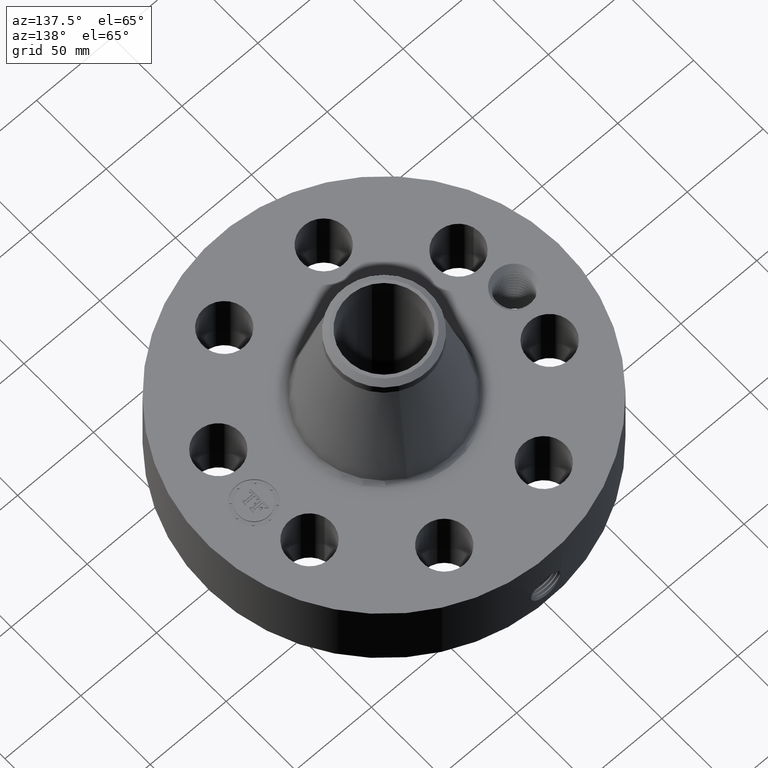
[diagram: clean part render]
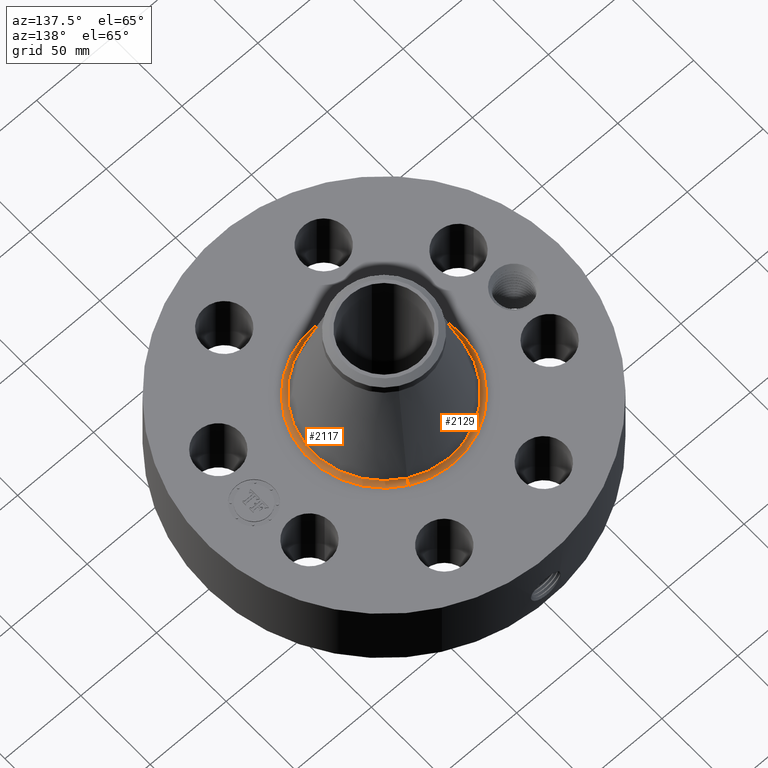
[diagram: same view with one multi-face feature highlighted, each face labeled with its STEP entity id]
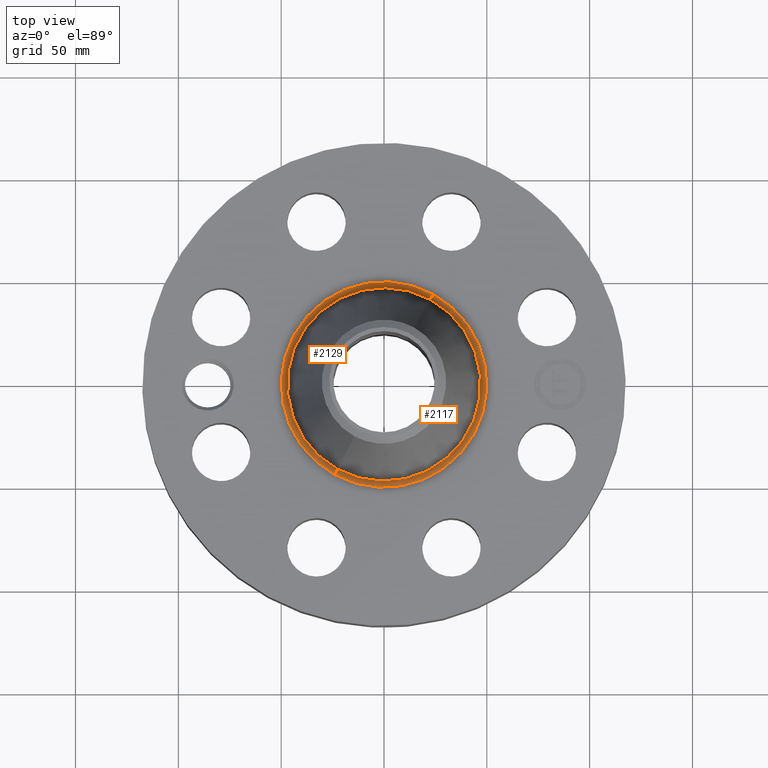
[diagram: same view with one multi-face feature highlighted, each face labeled with its STEP entity id]
A machine part, auxiliary view. The highlighted faces form ONE feature: a constant-radius fillet chain: 2 tangent blend faces with common blend radius 3.048 mm. The faces share edges in the B-rep.
A second angle (top view) of the same feature is appended — it is thin or edge-on in the first view.
Their STEP definitions:
[1] entity #2117 (Torus):
#596=AXIS2_PLACEMENT_3D('Circle Axis2P3D',#594,#595,$) ;
#2090=AXIS2_PLACEMENT_3D('Torus Axis2P3D',#2087,#2088,#2089) ;
#2094=AXIS2_PLACEMENT_3D('Circle Axis2P3D',#2092,#2093,$) ;
#2101=AXIS2_PLACEMENT_3D('Circle Axis2P3D',#2099,#2100,$) ;
#2108=AXIS2_PLACEMENT_3D('Circle Axis2P3D',#2106,#2107,$) ;
#589=CARTESIAN_POINT('Vertex',(-0.943494690313,-1.72705544612,2.25000000001)) ;
#591=CARTESIAN_POINT('Vertex',(0.943494690313,1.72705544612,2.25000000001)) ;
#594=CARTESIAN_POINT('Axis2P3D Location',(0.,0.,2.25000000001)) ;
#2087=CARTESIAN_POINT('Axis2P3D Location',(0.,0.,2.37000000001)) ;
#2092=CARTESIAN_POINT('Axis2P3D Location',(0.943494690313,1.72705544612,2.37000000001)) ;
#2096=CARTESIAN_POINT('Vertex',(0.887787841887,1.62508474406,2.34002129156)) ;
#2099=CARTESIAN_POINT('Axis2P3D Location',(0.,0.,2.34002129156)) ;
#2103=CARTESIAN_POINT('Vertex',(-0.887787841887,-1.62508474406,2.34002129156)) ;
#2106=CARTESIAN_POINT('Axis2P3D Location',(-0.943494690313,-1.72705544612,2.37000000001)) ;
#595=DIRECTION('Axis2P3D Direction',(0.,0.,-0.0393700787402)) ;
#2088=DIRECTION('Axis2P3D Direction',(0.,0.,-0.0393700787402)) ;
#2089=DIRECTION('Axis2P3D XDirection',(-0.0188750212049,-0.0345504945626,0.)) ;
#2093=DIRECTION('Axis2P3D Direction',(-0.0345504945626,0.0188750212049,0.)) ;
#2100=DIRECTION('Axis2P3D Direction',(0.,0.,-0.0393700787402)) ;
#2107=DIRECTION('Axis2P3D Direction',(0.0345504945626,-0.0188750212049,0.)) ;
#2112=ORIENTED_EDGE('',*,*,#598,.F.) ;
#2113=ORIENTED_EDGE('',*,*,#2098,.T.) ;
#2114=ORIENTED_EDGE('',*,*,#2105,.T.) ;
#2115=ORIENTED_EDGE('',*,*,#2110,.F.) ;
#2117=ADVANCED_FACE('PartBody',(#2116),#2091,.F.) ;
#597=CIRCLE('generated circle',#596,1.96796919301) ;
#2095=CIRCLE('generated circle',#2094,0.12) ;
#2102=CIRCLE('generated circle',#2101,1.85177419724) ;
#2109=CIRCLE('generated circle',#2108,0.12) ;
#2091=TOROIDAL_SURFACE('homeo Torus',#2090,1.96796919301,0.12) ;
#598=EDGE_CURVE('',#592,#590,#597,.T.) ;
#2098=EDGE_CURVE('',#592,#2097,#2095,.T.) ;
#2105=EDGE_CURVE('',#2097,#2104,#2102,.T.) ;
#2110=EDGE_CURVE('',#590,#2104,#2109,.T.) ;
#2111=EDGE_LOOP('',(#2112,#2113,#2114,#2115)) ;
#2116=FACE_OUTER_BOUND('',#2111,.T.) ;
#590=VERTEX_POINT('',#589) ;
#592=VERTEX_POINT('',#591) ;
#2097=VERTEX_POINT('',#2096) ;
#2104=VERTEX_POINT('',#2103) ;
[2] entity #2129 (Torus):
#587=AXIS2_PLACEMENT_3D('Circle Axis2P3D',#585,#586,$) ;
#2090=AXIS2_PLACEMENT_3D('Torus Axis2P3D',#2087,#2088,#2089) ;
#2094=AXIS2_PLACEMENT_3D('Circle Axis2P3D',#2092,#2093,$) ;
#2108=AXIS2_PLACEMENT_3D('Circle Axis2P3D',#2106,#2107,$) ;
#2120=AXIS2_PLACEMENT_3D('Circle Axis2P3D',#2118,#2119,$) ;
#585=CARTESIAN_POINT('Axis2P3D Location',(0.,0.,2.25000000001)) ;
#589=CARTESIAN_POINT('Vertex',(-0.943494690313,-1.72705544612,2.25000000001)) ;
#591=CARTESIAN_POINT('Vertex',(0.943494690313,1.72705544612,2.25000000001)) ;
#2087=CARTESIAN_POINT('Axis2P3D Location',(0.,0.,2.37000000001)) ;
#2092=CARTESIAN_POINT('Axis2P3D Location',(0.943494690313,1.72705544612,2.37000000001)) ;
#2096=CARTESIAN_POINT('Vertex',(0.887787841887,1.62508474406,2.34002129156)) ;
#2103=CARTESIAN_POINT('Vertex',(-0.887787841887,-1.62508474406,2.34002129156)) ;
#2106=CARTESIAN_POINT('Axis2P3D Location',(-0.943494690313,-1.72705544612,2.37000000001)) ;
#2118=CARTESIAN_POINT('Axis2P3D Location',(0.,0.,2.34002129156)) ;
#586=DIRECTION('Axis2P3D Direction',(0.,0.,-0.0393700787402)) ;
#2088=DIRECTION('Axis2P3D Direction',(0.,0.,-0.0393700787402)) ;
#2089=DIRECTION('Axis2P3D XDirection',(-0.0188750212049,-0.0345504945626,0.)) ;
#2093=DIRECTION('Axis2P3D Direction',(-0.0345504945626,0.0188750212049,0.)) ;
#2107=DIRECTION('Axis2P3D Direction',(0.0345504945626,-0.0188750212049,0.)) ;
#2119=DIRECTION('Axis2P3D Direction',(0.,0.,-0.0393700787402)) ;
#2124=ORIENTED_EDGE('',*,*,#593,.F.) ;
#2125=ORIENTED_EDGE('',*,*,#2110,.T.) ;
#2126=ORIENTED_EDGE('',*,*,#2122,.T.) ;
#2127=ORIENTED_EDGE('',*,*,#2098,.F.) ;
#2129=ADVANCED_FACE('PartBody',(#2128),#2091,.F.) ;
#588=CIRCLE('generated circle',#587,1.96796919301) ;
#2095=CIRCLE('generated circle',#2094,0.12) ;
#2109=CIRCLE('generated circle',#2108,0.12) ;
#2121=CIRCLE('generated circle',#2120,1.85177419724) ;
#2091=TOROIDAL_SURFACE('homeo Torus',#2090,1.96796919301,0.12) ;
#593=EDGE_CURVE('',#590,#592,#588,.T.) ;
#2098=EDGE_CURVE('',#592,#2097,#2095,.T.) ;
#2110=EDGE_CURVE('',#590,#2104,#2109,.T.) ;
#2122=EDGE_CURVE('',#2104,#2097,#2121,.T.) ;
#2123=EDGE_LOOP('',(#2124,#2125,#2126,#2127)) ;
#2128=FACE_OUTER_BOUND('',#2123,.T.) ;
#590=VERTEX_POINT('',#589) ;
#592=VERTEX_POINT('',#591) ;
#2097=VERTEX_POINT('',#2096) ;
#2104=VERTEX_POINT('',#2103) ;